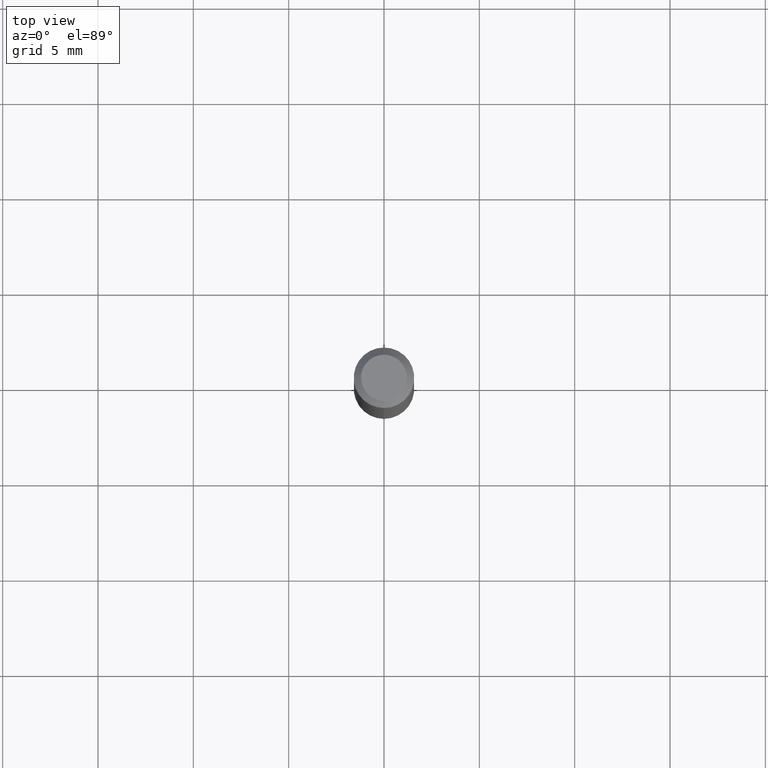
[diagram: clean part render]
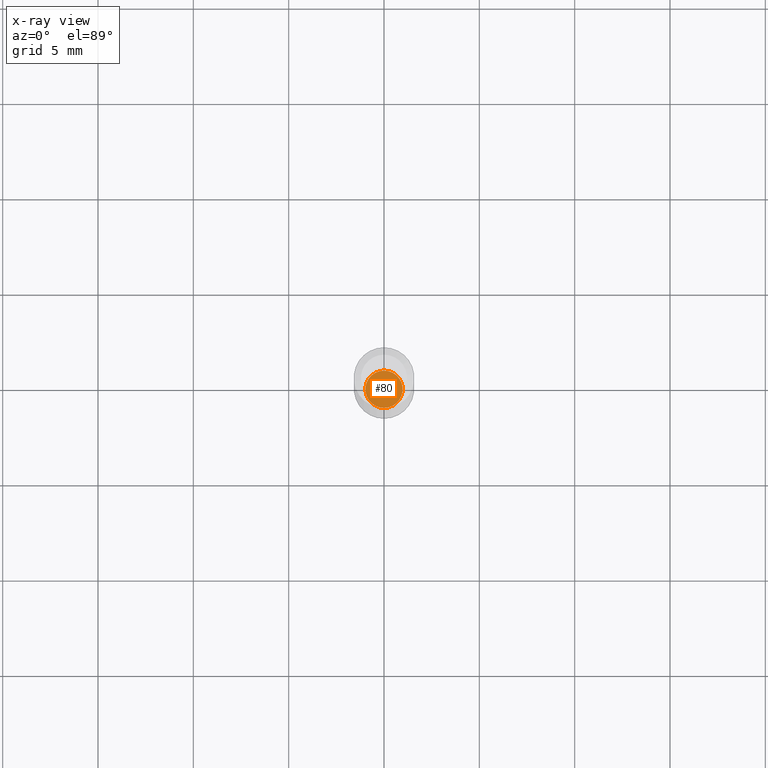
[diagram: x-ray — body ghosted, one internal face saturated and labeled with its STEP entity id]
A machine part, top view, then the same camera in x-ray: the body is ghosted and one INTERNAL B-rep face — a face not visible from any outside direction — is saturated and labeled: STEP entity #80.
In plain terms, the highlighted planar face has unit normal (-0, 0, 1).
Its self-contained STEP definition (entity closure, byte-faithful):
#4 = AXIS2_PLACEMENT_3D ( 'NONE', #128, #168, #328 ) ;
#6 = ORIENTED_EDGE ( 'NONE', *, *, #31, .F. ) ;
#31 = EDGE_CURVE ( 'NONE', #212, #257, #114, .T. ) ;
#47 = CARTESIAN_POINT ( 'NONE',  ( 3.382115306094214150E-29, -4.828672941497029911E-15, -1.383000000000000229 ) ) ;
#74 = AXIS2_PLACEMENT_3D ( 'NONE', #457, #449, #260 ) ;
#80 = ADVANCED_FACE ( 'NONE', ( #93 ), #323, .F. ) ;
#93 = FACE_OUTER_BOUND ( 'NONE', #125, .T. ) ;
#114 = CIRCLE ( 'NONE', #317, 0.03849999999999999256 ) ;
#125 = EDGE_LOOP ( 'NONE', ( #6, #301 ) ) ;
#128 = CARTESIAN_POINT ( 'NONE',  ( 3.382115306094214150E-29, -4.828672941497029911E-15, -1.383000000000000229 ) ) ;
#130 = EDGE_CURVE ( 'NONE', #257, #212, #343, .T. ) ;
#168 = DIRECTION ( 'NONE',  ( -2.445491906069567934E-29, 3.491448258493875484E-15, 1.000000000000000000 ) ) ;
#175 = DIRECTION ( 'NONE',  ( -6.982962677686266711E-15, -1.000000000000000000, 0.000000000000000000 ) ) ;
#212 = VERTEX_POINT ( 'NONE', #230 ) ;
#230 = CARTESIAN_POINT ( 'NONE',  ( -2.688440630908873907E-16, -0.03850000000000482897, -1.383000000000000229 ) ) ;
#257 = VERTEX_POINT ( 'NONE', #467 ) ;
#260 = DIRECTION ( 'NONE',  ( -6.982962677686266711E-15, -1.000000000000000000, 0.000000000000000000 ) ) ;
#301 = ORIENTED_EDGE ( 'NONE', *, *, #130, .F. ) ;
#317 = AXIS2_PLACEMENT_3D ( 'NONE', #47, #436, #175 ) ;
#323 = PLANE ( 'NONE',  #4 ) ;
#328 = DIRECTION ( 'NONE',  ( -6.982962677686265922E-15, -1.000000000000000000, 3.491448258493875484E-15 ) ) ;
#343 = CIRCLE ( 'NONE', #74, 0.03849999999999999256 ) ;
#436 = DIRECTION ( 'NONE',  ( -2.445491906069568494E-29, 3.491448258493875090E-15, 1.000000000000000000 ) ) ;
#449 = DIRECTION ( 'NONE',  ( -2.445491906069568494E-29, 3.491448258493875090E-15, 1.000000000000000000 ) ) ;
#457 = CARTESIAN_POINT ( 'NONE',  ( 3.382115306094214150E-29, -4.828672941497029911E-15, -1.383000000000000229 ) ) ;
#467 = CARTESIAN_POINT ( 'NONE',  ( 2.753353101070722973E-16, 0.03849999999999516309, -1.383000000000000229 ) ) ;